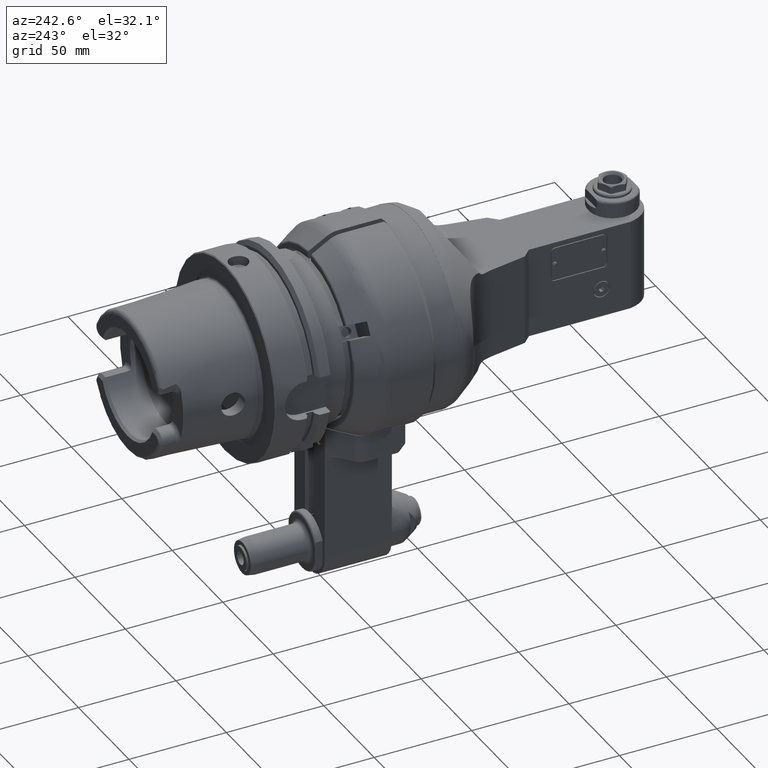
[diagram: clean part render]
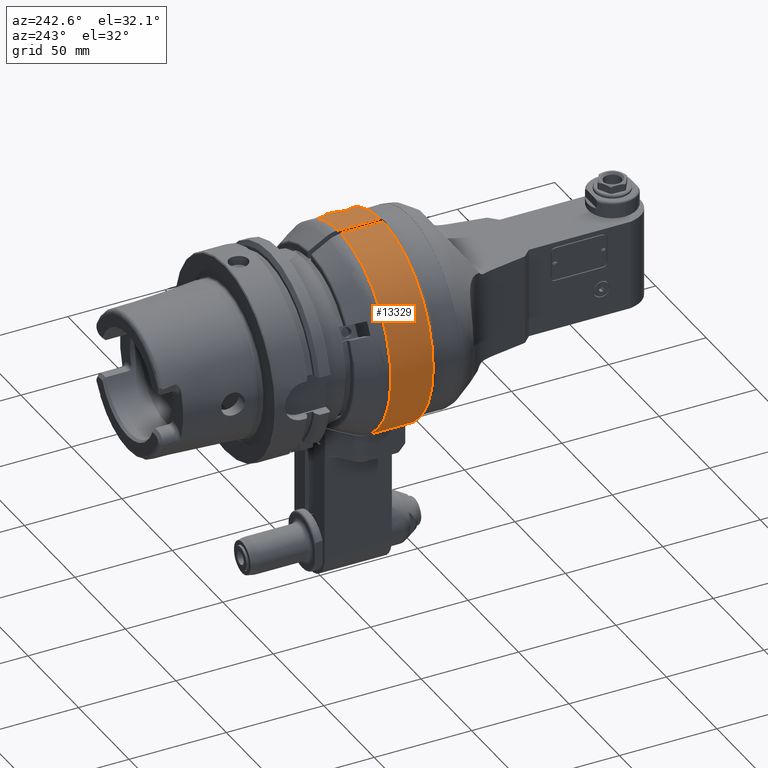
[diagram: same view with one face highlighted and labeled with its STEP entity id]
A machine part, auxiliary view. The second image highlights one B-rep face of the part: STEP entity #13329.
In plain terms, the highlighted cylindrical surface (partial cylindrical patch) has radius 51 mm, axis along (0, -1, 0).
Its self-contained STEP definition (entity closure, byte-faithful):
#14=DIRECTION('',(4.970250931195E-10,1.E0,1.462479987387E-11));
#15=VECTOR('',#14,2.174606325158E1);
#16=CARTESIAN_POINT('',(-1.499999971280E0,1.184142061468E2,5.097793640474E1));
#17=LINE('',#16,#15);
#18=DIRECTION('',(1.273469723607E-9,-1.E0,-3.747115976057E-11));
#19=VECTOR('',#18,2.174606856517E1);
#20=CARTESIAN_POINT('',(1.499999945521E0,1.401602752098E2,5.097793640550E1));
#21=LINE('',#20,#19);
#22=CARTESIAN_POINT('',(2.202271495506E1,1.38E2,4.600000028270E1));
#23=CARTESIAN_POINT('',(2.202271495506E1,1.380824012204E2,4.600000028270E1));
#24=CARTESIAN_POINT('',(2.203047433574E1,1.382473884792E2,4.599628662977E1));
#25=CARTESIAN_POINT('',(2.206523762405E1,1.384942336086E2,4.597962738915E1));
#26=CARTESIAN_POINT('',(2.212391800470E1,1.387440136483E2,4.595143404388E1));
#27=CARTESIAN_POINT('',(2.220934603366E1,1.390016692246E2,4.591022799891E1));
#28=CARTESIAN_POINT('',(2.232621727249E1,1.392713080837E2,4.585354187505E1));
#29=CARTESIAN_POINT('',(2.247835446645E1,1.395523988273E2,4.577920552175E1));
#30=CARTESIAN_POINT('',(2.267227434566E1,1.398480489259E2,4.568355769100E1));
#31=CARTESIAN_POINT('',(2.283387149448E1,1.400551171328E2,4.560289785936E1));
#32=CARTESIAN_POINT('',(2.292311419185E1,1.401602540379E2,4.555799420241E1));
#34=CARTESIAN_POINT('',(3.709447371525E1,1.38E2,3.500000028270E1));
#35=CARTESIAN_POINT('',(3.709447371525E1,1.378789814454E2,3.500000028270E1));
#36=CARTESIAN_POINT('',(3.708696619571E1,1.376370488268E2,3.500795969737E1));
#37=CARTESIAN_POINT('',(3.705280509580E1,1.372733258393E2,3.504412990650E1));
#38=CARTESIAN_POINT('',(3.699566257872E1,1.369121911072E2,3.510447575199E1));
#39=CARTESIAN_POINT('',(3.691463505924E1,1.365517900681E2,3.518971129953E1));
#40=CARTESIAN_POINT('',(3.680834321395E1,1.361924411921E2,3.530092958979E1));
#41=CARTESIAN_POINT('',(3.667647640245E1,1.358378262371E2,3.543798237909E1));
#42=CARTESIAN_POINT('',(3.651661828950E1,1.354863199979E2,3.560277217928E1));
#43=CARTESIAN_POINT('',(3.632683927557E1,1.351398559218E2,3.579649431377E1));
#44=CARTESIAN_POINT('',(3.610637706691E1,1.348021166058E2,3.601898198428E1));
#45=CARTESIAN_POINT('',(3.585110978101E1,1.344724225225E2,3.627322835348E1));
#46=CARTESIAN_POINT('',(3.555928476372E1,1.341548606254E2,3.655953514642E1));
#47=CARTESIAN_POINT('',(3.522907409760E1,1.338529693717E2,3.687805591189E1));
#48=CARTESIAN_POINT('',(3.485540844124E1,1.335684426023E2,3.723168184045E1));
#49=CARTESIAN_POINT('',(3.443771172003E1,1.333071508523E2,3.761865505913E1));
#50=CARTESIAN_POINT('',(3.397148768137E1,1.330723934467E2,3.804053864491E1));
#51=CARTESIAN_POINT('',(3.345471803112E1,1.328696992222E2,3.849615295346E1));
#52=CARTESIAN_POINT('',(3.288607092776E1,1.327046049571E2,3.898344277542E1));
#53=CARTESIAN_POINT('',(3.226306622295E1,1.325825285434E2,3.950099853128E1));
#54=CARTESIAN_POINT('',(3.158754171619E1,1.325095876852E2,4.004364697671E1));
#55=CARTESIAN_POINT('',(3.086012813854E1,1.324911737286E2,4.060725811310E1));
#56=CARTESIAN_POINT('',(3.008707523428E1,1.325322440686E2,4.118361297573E1));
#57=CARTESIAN_POINT('',(2.927597432453E1,1.326362903766E2,4.176429988513E1));
#58=CARTESIAN_POINT('',(2.843993001880E1,1.328046824140E2,4.233808936707E1));
#59=CARTESIAN_POINT('',(2.759753040706E1,1.330352767223E2,4.289181217473E1));
#60=CARTESIAN_POINT('',(2.677054473246E1,1.333220550202E2,4.341244693685E1));
#61=CARTESIAN_POINT('',(2.598319012742E1,1.336547486433E2,4.388772395621E1));
#62=CARTESIAN_POINT('',(2.526192328950E1,1.340177126570E2,4.430619115568E1));
#63=CARTESIAN_POINT('',(2.462817127993E1,1.343919872910E2,4.466096978052E1));
#64=CARTESIAN_POINT('',(2.408712710774E1,1.347635191411E2,4.495459031985E1));
#65=CARTESIAN_POINT('',(2.363284505594E1,1.351246817028E2,4.519470429892E1));
#66=CARTESIAN_POINT('',(2.325370937784E1,1.354740506488E2,4.539068607630E1));
#67=CARTESIAN_POINT('',(2.294299243859E1,1.358077363281E2,4.554834173352E1));
#68=CARTESIAN_POINT('',(2.269192834056E1,1.361245169716E2,4.567381163762E1));
#69=CARTESIAN_POINT('',(2.249214317872E1,1.364244985809E2,4.577244031624E1));
#70=CARTESIAN_POINT('',(2.233564873446E1,1.367092103523E2,4.584895329005E1));
#71=CARTESIAN_POINT('',(2.221504109806E1,1.369831640850E2,4.590747553742E1));
#72=CARTESIAN_POINT('',(2.212687608616E1,1.372451370801E2,4.595001113209E1));
#73=CARTESIAN_POINT('',(2.206636024521E1,1.374991424723E2,4.597908919589E1));
#74=CARTESIAN_POINT('',(2.203063292945E1,1.377497993559E2,4.599621076118E1));
#75=CARTESIAN_POINT('',(2.202271495506E1,1.379167418070E2,4.600000028270E1));
#76=CARTESIAN_POINT('',(2.202271495506E1,1.38E2,4.600000028270E1));
#78=CARTESIAN_POINT('',(3.667238995435E1,1.401602540379E2,3.544200636301E1));
#79=CARTESIAN_POINT('',(3.671406854977E1,1.400592805248E2,3.539888087829E1));
#80=CARTESIAN_POINT('',(3.679063711829E1,1.398563587467E2,3.531935242479E1));
#81=CARTESIAN_POINT('',(3.688620281531E1,1.395493586739E2,3.521950003377E1));
#82=CARTESIAN_POINT('',(3.696305110550E1,1.392414402331E2,3.513881123062E1));
#83=CARTESIAN_POINT('',(3.702224450178E1,1.389315059213E2,3.507641899658E1));
#84=CARTESIAN_POINT('',(3.706398901835E1,1.386218101069E2,3.503229176270E1));
#85=CARTESIAN_POINT('',(3.708895943725E1,1.383108244014E2,3.500584596334E1));
#86=CARTESIAN_POINT('',(3.709447371525E1,1.381036403786E2,3.500000028270E1));
#87=CARTESIAN_POINT('',(3.709447371525E1,1.38E2,3.500000028270E1));
#89=DIRECTION('',(2.351165518759E-13,-1.E0,1.618583766584E-13));
#90=VECTOR('',#89,1.852539489652E1);
#91=CARTESIAN_POINT('',(2.893095228297E1,1.401602540377E2,-4.2E1));
#92=LINE('',#91,#90);
#93=DIRECTION('',(7.274885849830E-14,1.E0,2.238426415332E-14));
#94=VECTOR('',#93,6.348591411298E-1);
#95=CARTESIAN_POINT('',(2.893095228298E1,1.21E2,-4.2E1));
#96=LINE('',#95,#94);
#97=CARTESIAN_POINT('',(0.E0,1.21E2,0.E0));
#98=DIRECTION('',(0.E0,1.E0,0.E0));
#99=DIRECTION('',(5.490196078431E-1,0.E0,-8.358094700371E-1));
#100=AXIS2_PLACEMENT_3D('',#97,#98,#99);
#102=DIRECTION('',(0.E0,-1.E0,1.119213207666E-14));
#103=VECTOR('',#102,6.348591411299E-1);
#104=CARTESIAN_POINT('',(-2.893095228298E1,1.216348591411E2,-4.2E1));
#105=LINE('',#104,#103);
#106=DIRECTION('',(-2.358836531871E-13,-1.E0,1.618583766584E-13));
#107=VECTOR('',#106,1.852539489652E1);
#108=CARTESIAN_POINT('',(-2.893095228297E1,1.401602540377E2,-4.2E1));
#109=LINE('',#108,#107);
#110=CARTESIAN_POINT('',(3.099596711028E1,1.195E2,4.050000028270E1));
#111=CARTESIAN_POINT('',(3.075302489790E1,1.195E2,4.068593185732E1));
#112=CARTESIAN_POINT('',(3.025464568856E1,1.195186904602E2,4.106048031485E1));
#113=CARTESIAN_POINT('',(2.946098827777E1,1.196075638856E2,4.163385468661E1));
#114=CARTESIAN_POINT('',(2.864307705065E1,1.197585595137E2,4.220077829376E1));
#115=CARTESIAN_POINT('',(2.781493695789E1,1.199702412505E2,4.275107424175E1));
#116=CARTESIAN_POINT('',(2.699476968997E1,1.202385307124E2,4.327337008314E1));
#117=CARTESIAN_POINT('',(2.620703990194E1,1.205542026085E2,4.375447850960E1));
#118=CARTESIAN_POINT('',(2.547635661352E1,1.209037389992E2,4.418335208510E1));
#119=CARTESIAN_POINT('',(2.482438283033E1,1.212701285485E2,4.455233681603E1));
#120=CARTESIAN_POINT('',(2.426161590052E1,1.216378749029E2,4.486077321293E1));
#121=CARTESIAN_POINT('',(2.378549865846E1,1.219975791072E2,4.511463914193E1));
#122=CARTESIAN_POINT('',(2.338581584681E1,1.223465212127E2,4.532283196382E1));
#123=CARTESIAN_POINT('',(2.305563990237E1,1.226809079967E2,4.549147633332E1));
#124=CARTESIAN_POINT('',(2.278658301326E1,1.229990621290E2,4.562669918501E1));
#125=CARTESIAN_POINT('',(2.257044473973E1,1.233006450842E2,4.573390631259E1));
#126=CARTESIAN_POINT('',(2.239944493631E1,1.235863283433E2,4.581783755052E1));
#127=CARTESIAN_POINT('',(2.226552528237E1,1.238606526116E2,4.588302428954E1));
#128=CARTESIAN_POINT('',(2.216479661708E1,1.241231728843E2,4.593174020123E1));
#129=CARTESIAN_POINT('',(2.209233323791E1,1.243774191122E2,4.596662084752E1));
#130=CARTESIAN_POINT('',(2.204481547308E1,1.246294159333E2,4.598941813978E1));
#131=CARTESIAN_POINT('',(2.202166083344E1,1.248783153685E2,4.600050509204E1));
#132=CARTESIAN_POINT('',(2.202183443895E1,1.251243491729E2,4.600042203201E1));
#133=CARTESIAN_POINT('',(2.204493443773E1,1.253709229870E2,4.598936097226E1));
#134=CARTESIAN_POINT('',(2.209221115898E1,1.256222965261E2,4.596667972004E1));
#135=CARTESIAN_POINT('',(2.216552948872E1,1.258791582855E2,4.593138712372E1));
#136=CARTESIAN_POINT('',(2.226627375520E1,1.261409135989E2,4.588266035866E1));
#137=CARTESIAN_POINT('',(2.239968558874E1,1.264141481919E2,4.581772046621E1));
#138=CARTESIAN_POINT('',(2.257156063411E1,1.267010716161E2,4.573335603335E1));
#139=CARTESIAN_POINT('',(2.278738028501E1,1.270019375403E2,4.562630109956E1));
#140=CARTESIAN_POINT('',(2.305669488508E1,1.273202206589E2,4.549094074093E1));
#141=CARTESIAN_POINT('',(2.338575111455E1,1.276533563891E2,4.532286097297E1));
#142=CARTESIAN_POINT('',(2.378457550693E1,1.280016628294E2,4.511512432009E1));
#143=CARTESIAN_POINT('',(2.426040787783E1,1.283612618361E2,4.486142313219E1));
#144=CARTESIAN_POINT('',(2.482263326990E1,1.287288262079E2,4.455331381455E1));
#145=CARTESIAN_POINT('',(2.547559521215E1,1.290958842145E2,4.418379484720E1));
#146=CARTESIAN_POINT('',(2.620607937527E1,1.294453690610E2,4.375505160165E1));
#147=CARTESIAN_POINT('',(2.699388436913E1,1.297611545614E2,4.327392429313E1));
#148=CARTESIAN_POINT('',(2.781431744924E1,1.300295858070E2,4.275148016452E1));
#149=CARTESIAN_POINT('',(2.864275988875E1,1.302413752056E2,4.220099536918E1));
#150=CARTESIAN_POINT('',(2.946069292618E1,1.303923891021E2,4.163406247717E1));
#151=CARTESIAN_POINT('',(3.025426172072E1,1.304812824999E2,4.106076404020E1));
#152=CARTESIAN_POINT('',(3.075287080349E1,1.305E2,4.068604979078E1));
#153=CARTESIAN_POINT('',(3.099596711028E1,1.305E2,4.050000028270E1));
#155=CARTESIAN_POINT('',(-2.893095228297E1,1.401602540377E2,-4.2E1));
#177=CARTESIAN_POINT('',(0.E0,1.401602540378E2,0.E0));
#178=DIRECTION('',(0.E0,1.E0,0.E0));
#179=DIRECTION('',(-5.672735741761E-1,0.E0,-8.235294117647E-1));
#180=AXIS2_PLACEMENT_3D('',#177,#178,#179);
#5647=CARTESIAN_POINT('',(-1.499999971280E0,1.184142061468E2,5.097793640474E1));
#6160=CARTESIAN_POINT('',(2.893095228297E1,1.401602540377E2,-4.2E1));
#6162=CARTESIAN_POINT('',(0.E0,1.401602540378E2,0.E0));
#6163=DIRECTION('',(0.E0,1.E0,0.E0));
#6164=DIRECTION('',(7.190664696933E-1,0.E0,6.949413012354E-1));
#6165=AXIS2_PLACEMENT_3D('',#6162,#6163,#6164);
#6167=CARTESIAN_POINT('',(0.E0,1.401602540378E2,0.E0));
#6168=DIRECTION('',(0.E0,1.E0,0.E0));
#6169=DIRECTION('',(2.941176470588E-2,0.E0,9.995673804686E-1));
#6170=AXIS2_PLACEMENT_3D('',#6167,#6168,#6169);
#6693=CARTESIAN_POINT('',(0.E0,1.21E2,0.E0));
#6694=DIRECTION('',(0.E0,1.E0,0.E0));
#6695=DIRECTION('',(5.672735741761E-1,0.E0,-8.235294117647E-1));
#6696=AXIS2_PLACEMENT_3D('',#6693,#6694,#6695);
#8248=CARTESIAN_POINT('',(0.E0,1.184142135624E2,0.E0));
#8249=DIRECTION('',(0.E0,-1.E0,0.E0));
#8250=DIRECTION('',(9.998263884745E-1,0.E0,1.863311326879E-2));
#8251=AXIS2_PLACEMENT_3D('',#8248,#8249,#8250);
#8263=CARTESIAN_POINT('',(5.099114581220E1,1.184142135624E2,9.502887767138E-1));
#8270=CARTESIAN_POINT('',(1.499999973214E0,1.184142066446E2,5.097793640469E1));
#8281=CARTESIAN_POINT('',(5.1E1,1.203301270189E2,1.776357839400E-14));
#8282=CARTESIAN_POINT('',(5.1E1,1.196924942174E2,3.188164007611E-1));
#8283=CARTESIAN_POINT('',(5.099701133058E1,1.190538437061E2,6.355533927821E-1));
#8284=CARTESIAN_POINT('',(5.099114581220E1,1.184142135623E2,9.502887767211E-1));
#8303=CARTESIAN_POINT('',(5.099114581220E1,1.184142135624E2,
-9.502887767157E-1));
#8304=CARTESIAN_POINT('',(5.099701133058E1,1.190538437061E2,
-6.355533927785E-1));
#8305=CARTESIAN_POINT('',(5.1E1,1.196924942174E2,-3.188164007593E-1));
#8306=CARTESIAN_POINT('',(5.1E1,1.203301270189E2,-5.329070518201E-14));
#8308=CARTESIAN_POINT('',(0.E0,1.184142135624E2,0.E0));
#8309=DIRECTION('',(0.E0,-1.E0,0.E0));
#8310=DIRECTION('',(-2.941176470588E-2,0.E0,9.995673804686E-1));
#8311=AXIS2_PLACEMENT_3D('',#8308,#8309,#8310);
#8323=CARTESIAN_POINT('',(5.099114581220E1,1.184142135624E2,
-9.502887767115E-1));
#8335=CARTESIAN_POINT('',(0.E0,1.184142135624E2,0.E0));
#8336=DIRECTION('',(0.E0,-1.E0,0.E0));
#8337=DIRECTION('',(0.E0,0.E0,-1.E0));
#8338=AXIS2_PLACEMENT_3D('',#8335,#8336,#8337);
#10841=CARTESIAN_POINT('',(0.E0,1.21E2,0.E0));
#10842=DIRECTION('',(0.E0,1.E0,0.E0));
#10843=DIRECTION('',(-5.490196078431E-1,0.E0,-8.358094700371E-1));
#10844=AXIS2_PLACEMENT_3D('',#10841,#10842,#10843);
#10846=CARTESIAN_POINT('',(3.099596711028E1,1.305E2,4.050000028270E1));
#10847=CARTESIAN_POINT('',(3.124184975297E1,1.305E2,4.031181830115E1));
#10848=CARTESIAN_POINT('',(3.171694379564E1,1.304807050805E2,3.994111477233E1));
#10849=CARTESIAN_POINT('',(3.237942340695E1,1.303988042886E2,3.940556977951E1));
#10850=CARTESIAN_POINT('',(3.298884756422E1,1.302694914378E2,3.889640793489E1));
#10851=CARTESIAN_POINT('',(3.354550561992E1,1.300984890621E2,3.841698008594E1));
#10852=CARTESIAN_POINT('',(3.405054296876E1,1.298914171254E2,3.796971030389E1));
#10853=CARTESIAN_POINT('',(3.450601077777E1,1.296536048307E2,3.755595250546E1));
#10854=CARTESIAN_POINT('',(3.491442957162E1,1.293899703837E2,3.717628111100E1));
#10855=CARTESIAN_POINT('',(3.527858417987E1,1.291049575208E2,3.683064728732E1));
#10856=CARTESIAN_POINT('',(3.560135070207E1,1.288025027411E2,3.651853534718E1));
#10857=CARTESIAN_POINT('',(3.588557350373E1,1.284860347918E2,3.623909746113E1));
#10858=CARTESIAN_POINT('',(3.613398072469E1,1.281584886270E2,3.599126524763E1));
#10859=CARTESIAN_POINT('',(3.634912275872E1,1.278223362608E2,3.577384660549E1));
#10860=CARTESIAN_POINT('',(3.653333361825E1,1.274796212424E2,3.558560267208E1));
#10861=CARTESIAN_POINT('',(3.668870189562E1,1.271320038072E2,3.542531478708E1));
#10862=CARTESIAN_POINT('',(3.681705298444E1,1.267808104378E2,3.529183770686E1));
#10863=CARTESIAN_POINT('',(3.691994210896E1,1.264270714016E2,3.518413790518E1));
#10864=CARTESIAN_POINT('',(3.699864286432E1,1.260715838538E2,3.510133217403E1));
#10865=CARTESIAN_POINT('',(3.705414797170E1,1.257149536263E2,3.504270875435E1));
#10866=CARTESIAN_POINT('',(3.708716762725E1,1.253576352176E2,3.500774601194E1));
#10867=CARTESIAN_POINT('',(3.709812675063E1,1.250000004482E2,3.499612742721E1));
#10868=CARTESIAN_POINT('',(3.708716766172E1,1.246423651707E2,3.500774597539E1));
#10869=CARTESIAN_POINT('',(3.705414799068E1,1.242850464748E2,3.504270873433E1));
#10870=CARTESIAN_POINT('',(3.699864283317E1,1.239284159928E2,3.510133220683E1));
#10871=CARTESIAN_POINT('',(3.691994214991E1,1.235729287676E2,3.518413786217E1));
#10872=CARTESIAN_POINT('',(3.681705297101E1,1.232191895043E2,3.529183772104E1));
#10873=CARTESIAN_POINT('',(3.668870188307E1,1.228679961781E2,3.542531479981E1));
#10874=CARTESIAN_POINT('',(3.653333371074E1,1.225203789453E2,3.558560257712E1));
#10875=CARTESIAN_POINT('',(3.634912277970E1,1.221776637722E2,3.577384658422E1));
#10876=CARTESIAN_POINT('',(3.613398082020E1,1.218415115154E2,3.599126515146E1));
#10877=CARTESIAN_POINT('',(3.588557361692E1,1.215139653447E2,3.623909734898E1));
#10878=CARTESIAN_POINT('',(3.560135083789E1,1.211974973975E2,3.651853521475E1));
#10879=CARTESIAN_POINT('',(3.527858430968E1,1.208950425901E2,3.683064716293E1));
#10880=CARTESIAN_POINT('',(3.491442972946E1,1.206100297292E2,3.717628096260E1));
#10881=CARTESIAN_POINT('',(3.450601094372E1,1.203463952650E2,3.755595235305E1));
#10882=CARTESIAN_POINT('',(3.405054313592E1,1.201085829527E2,3.796971015379E1));
#10883=CARTESIAN_POINT('',(3.354550581432E1,1.199015110064E2,3.841697991634E1));
#10884=CARTESIAN_POINT('',(3.298884771537E1,1.197305086004E2,3.889640780684E1));
#10885=CARTESIAN_POINT('',(3.237942356299E1,1.196011957363E2,3.940556965161E1));
#10886=CARTESIAN_POINT('',(3.171694386738E1,1.195192949227E2,3.994111471621E1));
#10887=CARTESIAN_POINT('',(3.124184977896E1,1.195E2,4.031181828126E1));
#10888=CARTESIAN_POINT('',(3.099596711028E1,1.195E2,4.050000028270E1));
#11653=VERTEX_POINT('',#5647);
#11654=CARTESIAN_POINT('',(-1.499999960471E0,1.401602693983E2,
5.097793640506E1));
#11655=VERTEX_POINT('',#11654);
#11674=VERTEX_POINT('',#8263);
#11675=VERTEX_POINT('',#8270);
#11676=VERTEX_POINT('',#8281);
#11681=VERTEX_POINT('',#8323);
#11682=CARTESIAN_POINT('',(1.217859306011E-14,1.184142135624E2,-5.1E1));
#11683=VERTEX_POINT('',#11682);
#11685=CARTESIAN_POINT('',(1.5E0,1.401602540378E2,5.097793640390E1));
#11686=CARTESIAN_POINT('',(2.292311419183E1,1.401602540378E2,4.555799420242E1));
#11687=VERTEX_POINT('',#11685);
#11688=VERTEX_POINT('',#11686);
#11761=CARTESIAN_POINT('',(3.099596711028E1,1.195E2,4.050000028270E1));
#11762=VERTEX_POINT('',#11761);
#11763=VERTEX_POINT('',#153);
#11770=CARTESIAN_POINT('',(3.709447371525E1,1.38E2,3.500000028270E1));
#11771=VERTEX_POINT('',#11770);
#11772=VERTEX_POINT('',#76);
#11775=VERTEX_POINT('',#78);
#12707=VERTEX_POINT('',#6160);
#12712=CARTESIAN_POINT('',(-2.893095228298E1,1.216348591411E2,-4.2E1));
#12714=VERTEX_POINT('',#12712);
#12717=CARTESIAN_POINT('',(2.893095228298E1,1.216348591411E2,-4.2E1));
#12719=VERTEX_POINT('',#12717);
#12726=VERTEX_POINT('',#155);
#12728=CARTESIAN_POINT('',(-2.8E1,1.21E2,-4.262628297189E1));
#12729=VERTEX_POINT('',#12728);
#12730=CARTESIAN_POINT('',(2.8E1,1.21E2,-4.262628297189E1));
#12731=VERTEX_POINT('',#12730);
#12734=CARTESIAN_POINT('',(-2.893095228298E1,1.21E2,-4.2E1));
#12735=VERTEX_POINT('',#12734);
#12736=CARTESIAN_POINT('',(2.893095228298E1,1.21E2,-4.2E1));
#12737=VERTEX_POINT('',#12736);
#13277=CARTESIAN_POINT('',(0.E0,1.47E2,0.E0));
#13278=DIRECTION('',(0.E0,-1.E0,0.E0));
#13279=DIRECTION('',(0.E0,0.E0,1.E0));
#13280=AXIS2_PLACEMENT_3D('',#13277,#13278,#13279);
#13281=CYLINDRICAL_SURFACE('',#13280,5.1E1);
#13283=ORIENTED_EDGE('',*,*,#13282,.T.);
#13285=ORIENTED_EDGE('',*,*,#13284,.F.);
#13287=ORIENTED_EDGE('',*,*,#13286,.T.);
#13289=ORIENTED_EDGE('',*,*,#13288,.T.);
#13291=ORIENTED_EDGE('',*,*,#13290,.T.);
#13293=ORIENTED_EDGE('',*,*,#13292,.T.);
#13295=ORIENTED_EDGE('',*,*,#13294,.T.);
#13297=ORIENTED_EDGE('',*,*,#13296,.F.);
#13299=ORIENTED_EDGE('',*,*,#13298,.T.);
#13301=ORIENTED_EDGE('',*,*,#13300,.F.);
#13303=ORIENTED_EDGE('',*,*,#13302,.F.);
#13305=ORIENTED_EDGE('',*,*,#13304,.F.);
#13307=ORIENTED_EDGE('',*,*,#13306,.T.);
#13309=ORIENTED_EDGE('',*,*,#13308,.T.);
#13311=ORIENTED_EDGE('',*,*,#13310,.F.);
#13313=ORIENTED_EDGE('',*,*,#13312,.T.);
#13315=ORIENTED_EDGE('',*,*,#13314,.T.);
#13317=ORIENTED_EDGE('',*,*,#13316,.T.);
#13318=ORIENTED_EDGE('',*,*,#13270,.F.);
#13320=ORIENTED_EDGE('',*,*,#13319,.F.);
#13321=EDGE_LOOP('',(#13283,#13285,#13287,#13289,#13291,#13293,#13295,#13297,
#13299,#13301,#13303,#13305,#13307,#13309,#13311,#13313,#13315,#13317,#13318,
#13320));
#13322=FACE_OUTER_BOUND('',#13321,.F.);
#13324=ORIENTED_EDGE('',*,*,#13323,.F.);
#13326=ORIENTED_EDGE('',*,*,#13325,.F.);
#13327=EDGE_LOOP('',(#13324,#13326));
#13328=FACE_BOUND('',#13327,.F.);
#13329=ADVANCED_FACE('',(#13322,#13328),#13281,.T.);
#33=B_SPLINE_CURVE_WITH_KNOTS('',3,(#22,#23,#24,#25,#26,#27,#28,#29,#30,#31,
#32),.UNSPECIFIED.,.F.,.F.,(4,1,1,1,1,1,1,1,4),(0.E0,1.25E-1,2.5E-1,3.75E-1,
5.E-1,6.25E-1,7.5E-1,8.75E-1,1.E0),.UNSPECIFIED.);
#77=B_SPLINE_CURVE_WITH_KNOTS('',3,(#34,#35,#36,#37,#38,#39,#40,#41,#42,#43,#44,
#45,#46,#47,#48,#49,#50,#51,#52,#53,#54,#55,#56,#57,#58,#59,#60,#61,#62,#63,#64,
#65,#66,#67,#68,#69,#70,#71,#72,#73,#74,#75,#76),.UNSPECIFIED.,.F.,.F.,(4,1,1,1,
1,1,1,1,1,1,1,1,1,1,1,1,1,1,1,1,1,1,1,1,1,1,1,1,1,1,1,1,1,1,1,1,1,1,1,1,4),
(0.E0,2.5E-2,5.E-2,7.5E-2,1.E-1,1.25E-1,1.5E-1,1.75E-1,2.E-1,2.25E-1,2.5E-1,
2.75E-1,3.E-1,3.25E-1,3.5E-1,3.75E-1,4.E-1,4.25E-1,4.5E-1,4.75E-1,5.E-1,5.25E-1,
5.5E-1,5.75E-1,6.E-1,6.25E-1,6.5E-1,6.75E-1,7.E-1,7.25E-1,7.5E-1,7.75E-1,8.E-1,
8.25E-1,8.5E-1,8.75E-1,9.E-1,9.25E-1,9.5E-1,9.75E-1,1.E0),.UNSPECIFIED.);
#88=B_SPLINE_CURVE_WITH_KNOTS('',3,(#78,#79,#80,#81,#82,#83,#84,#85,#86,#87),
.UNSPECIFIED.,.F.,.F.,(4,1,1,1,1,1,1,4),(0.E0,1.428571428571E-1,
2.857142857143E-1,4.285714285714E-1,5.714285714286E-1,7.142857142857E-1,
8.571428571429E-1,1.E0),.UNSPECIFIED.);
#101=CIRCLE('',#100,5.1E1);
#154=B_SPLINE_CURVE_WITH_KNOTS('',3,(#110,#111,#112,#113,#114,#115,#116,#117,
#118,#119,#120,#121,#122,#123,#124,#125,#126,#127,#128,#129,#130,#131,#132,#133,
#134,#135,#136,#137,#138,#139,#140,#141,#142,#143,#144,#145,#146,#147,#148,#149,
#150,#151,#152,#153),.UNSPECIFIED.,.F.,.F.,(4,1,1,1,1,1,1,1,1,1,1,1,1,1,1,1,1,1,
1,1,1,1,1,1,1,1,1,1,1,1,1,1,1,1,1,1,1,1,1,1,1,4),(0.E0,2.439024390244E-2,
4.878048780488E-2,7.317073170732E-2,9.756097560976E-2,1.219512195122E-1,
1.463414634146E-1,1.707317073171E-1,1.951219512195E-1,2.195121951220E-1,
2.439024390244E-1,2.682926829268E-1,2.926829268293E-1,3.170731707317E-1,
3.414634146341E-1,3.658536585366E-1,3.902439024390E-1,4.146341463415E-1,
4.390243902439E-1,4.634146341463E-1,4.878048780488E-1,5.121951219512E-1,
5.365853658537E-1,5.609756097561E-1,5.853658536585E-1,6.097560975610E-1,
6.341463414634E-1,6.585365853659E-1,6.829268292683E-1,7.073170731707E-1,
7.317073170732E-1,7.560975609756E-1,7.804878048780E-1,8.048780487805E-1,
8.292682926829E-1,8.536585365854E-1,8.780487804878E-1,9.024390243902E-1,
9.268292682927E-1,9.512195121951E-1,9.756097560976E-1,1.E0),.UNSPECIFIED.);
#181=CIRCLE('',#180,5.1E1);
#6166=CIRCLE('',#6165,5.1E1);
#6171=CIRCLE('',#6170,5.1E1);
#6697=CIRCLE('',#6696,5.1E1);
#8252=CIRCLE('',#8251,5.1E1);
#8285=B_SPLINE_CURVE_WITH_KNOTS('',3,(#8281,#8282,#8283,#8284),.UNSPECIFIED.,
.F.,.F.,(4,4),(0.E0,1.E0),.UNSPECIFIED.);
#8307=B_SPLINE_CURVE_WITH_KNOTS('',3,(#8303,#8304,#8305,#8306),.UNSPECIFIED.,
.F.,.F.,(4,4),(0.E0,1.E0),.UNSPECIFIED.);
#8312=CIRCLE('',#8311,5.1E1);
#8339=CIRCLE('',#8338,5.1E1);
#10845=CIRCLE('',#10844,5.1E1);
#10889=B_SPLINE_CURVE_WITH_KNOTS('',3,(#10846,#10847,#10848,#10849,#10850,
#10851,#10852,#10853,#10854,#10855,#10856,#10857,#10858,#10859,#10860,#10861,
#10862,#10863,#10864,#10865,#10866,#10867,#10868,#10869,#10870,#10871,#10872,
#10873,#10874,#10875,#10876,#10877,#10878,#10879,#10880,#10881,#10882,#10883,
#10884,#10885,#10886,#10887,#10888),.UNSPECIFIED.,.F.,.F.,(4,1,1,1,1,1,1,1,1,1,
1,1,1,1,1,1,1,1,1,1,1,1,1,1,1,1,1,1,1,1,1,1,1,1,1,1,1,1,1,1,4),(0.E0,2.5E-2,
5.E-2,7.5E-2,1.E-1,1.25E-1,1.5E-1,1.75E-1,2.E-1,2.25E-1,2.5E-1,2.75E-1,3.E-1,
3.25E-1,3.5E-1,3.75E-1,4.E-1,4.25E-1,4.5E-1,4.75E-1,5.E-1,5.25E-1,5.5E-1,
5.75E-1,6.E-1,6.25E-1,6.5E-1,6.75E-1,7.E-1,7.25E-1,7.5E-1,7.75E-1,8.E-1,8.25E-1,
8.5E-1,8.75E-1,9.E-1,9.25E-1,9.5E-1,9.75E-1,1.E0),.UNSPECIFIED.);
#13270=EDGE_CURVE('',#12714,#12735,#105,.T.);
#13282=EDGE_CURVE('',#12726,#11655,#181,.T.);
#13284=EDGE_CURVE('',#11653,#11655,#17,.T.);
#13286=EDGE_CURVE('',#11653,#11683,#8312,.T.);
#13288=EDGE_CURVE('',#11683,#11681,#8339,.T.);
#13290=EDGE_CURVE('',#11681,#11676,#8307,.T.);
#13292=EDGE_CURVE('',#11676,#11674,#8285,.T.);
#13294=EDGE_CURVE('',#11674,#11675,#8252,.T.);
#13296=EDGE_CURVE('',#11687,#11675,#21,.T.);
#13298=EDGE_CURVE('',#11687,#11688,#6171,.T.);
#13300=EDGE_CURVE('',#11772,#11688,#33,.T.);
#13302=EDGE_CURVE('',#11771,#11772,#77,.T.);
#13304=EDGE_CURVE('',#11775,#11771,#88,.T.);
#13306=EDGE_CURVE('',#11775,#12707,#6166,.T.);
#13308=EDGE_CURVE('',#12707,#12719,#92,.T.);
#13310=EDGE_CURVE('',#12737,#12719,#96,.T.);
#13312=EDGE_CURVE('',#12737,#12731,#6697,.T.);
#13314=EDGE_CURVE('',#12731,#12729,#101,.T.);
#13316=EDGE_CURVE('',#12729,#12735,#10845,.T.);
#13319=EDGE_CURVE('',#12726,#12714,#109,.T.);
#13323=EDGE_CURVE('',#11763,#11762,#10889,.T.);
#13325=EDGE_CURVE('',#11762,#11763,#154,.T.);